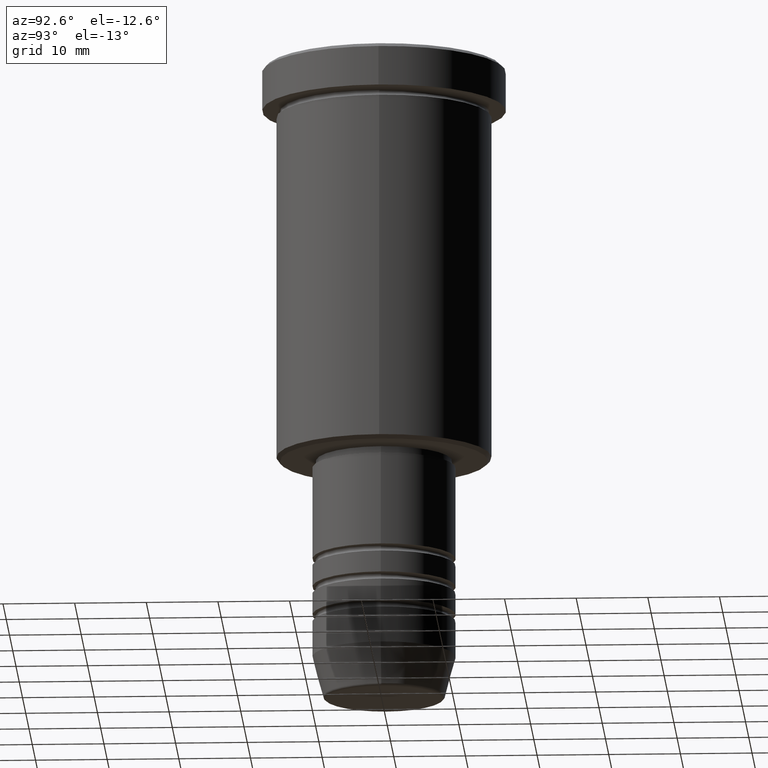
[diagram: clean part render]
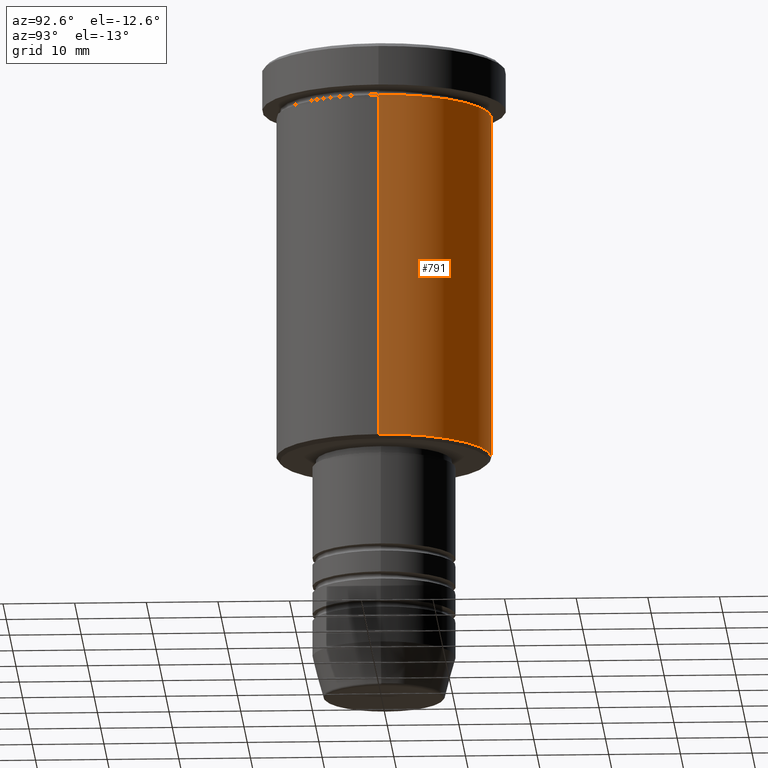
[diagram: same view with one face highlighted and labeled with its STEP entity id]
A machine part, auxiliary view. The second image highlights one B-rep face of the part: STEP entity #791.
In plain terms, the highlighted cylindrical surface (partial cylindrical patch) has radius 15 mm, axis along (-0, -0, 1).
Its self-contained STEP definition (entity closure, byte-faithful):
#25 = AXIS2_PLACEMENT_3D ( 'NONE', #471, #1076, #739 ) ;
#42 = DIRECTION ( 'NONE',  ( -0.000000000000000000, -0.000000000000000000, 1.000000000000000000 ) ) ;
#76 = ORIENTED_EDGE ( 'NONE', *, *, #915, .T. ) ;
#147 = DIRECTION ( 'NONE',  ( -0.000000000000000000, -0.000000000000000000, 1.000000000000000000 ) ) ;
#179 = DIRECTION ( 'NONE',  ( -0.000000000000000000, -0.000000000000000000, 1.000000000000000000 ) ) ;
#180 = EDGE_CURVE ( 'NONE', #697, #325, #645, .T. ) ;
#250 = EDGE_CURVE ( 'NONE', #1119, #457, #881, .T. ) ;
#276 = ORIENTED_EDGE ( 'NONE', *, *, #180, .F. ) ;
#323 = CIRCLE ( 'NONE', #25, 15.00000000000000000 ) ;
#325 = VERTEX_POINT ( 'NONE', #1155 ) ;
#326 = DIRECTION ( 'NONE',  ( 1.000000000000000000, 0.000000000000000000, 0.000000000000000000 ) ) ;
#327 = CARTESIAN_POINT ( 'NONE',  ( -15.00000000000000000, 1.836970198721029589E-15, 0.000000000000000000 ) ) ;
#421 = CIRCLE ( 'NONE', #502, 15.00000000000000000 ) ;
#434 = ORIENTED_EDGE ( 'NONE', *, *, #250, .T. ) ;
#447 = CARTESIAN_POINT ( 'NONE',  ( 15.00000000000000000, 0.000000000000000000, 0.000000000000000000 ) ) ;
#457 = VERTEX_POINT ( 'NONE', #835 ) ;
#471 = CARTESIAN_POINT ( 'NONE',  ( 0.000000000000000000, 0.000000000000000000, -55.49999999999997158 ) ) ;
#480 = DIRECTION ( 'NONE',  ( 1.000000000000000000, 0.000000000000000000, 0.000000000000000000 ) ) ;
#502 = AXIS2_PLACEMENT_3D ( 'NONE', #1013, #927, #480 ) ;
#593 = FACE_OUTER_BOUND ( 'NONE', #669, .T. ) ;
#638 = AXIS2_PLACEMENT_3D ( 'NONE', #944, #147, #326 ) ;
#645 = LINE ( 'NONE', #447, #750 ) ;
#669 = EDGE_LOOP ( 'NONE', ( #76, #434, #1178, #276 ) ) ;
#697 = VERTEX_POINT ( 'NONE', #875 ) ;
#739 = DIRECTION ( 'NONE',  ( -1.000000000000000000, 0.000000000000000000, 0.000000000000000000 ) ) ;
#750 = VECTOR ( 'NONE', #179, 1000.000000000000000 ) ;
#791 = ADVANCED_FACE ( 'NONE', ( #593 ), #1135, .T. ) ;
#792 = CARTESIAN_POINT ( 'NONE',  ( -15.00000000000000000, 1.836970198721029589E-15, -55.49999999999997158 ) ) ;
#835 = CARTESIAN_POINT ( 'NONE',  ( -15.00000000000000000, 1.836970198721029589E-15, -6.999999999999995559 ) ) ;
#875 = CARTESIAN_POINT ( 'NONE',  ( 15.00000000000000000, 0.000000000000000000, -55.49999999999997158 ) ) ;
#881 = LINE ( 'NONE', #327, #925 ) ;
#915 = EDGE_CURVE ( 'NONE', #697, #1119, #323, .T. ) ;
#925 = VECTOR ( 'NONE', #42, 1000.000000000000000 ) ;
#927 = DIRECTION ( 'NONE',  ( -0.000000000000000000, -0.000000000000000000, 1.000000000000000000 ) ) ;
#944 = CARTESIAN_POINT ( 'NONE',  ( 0.000000000000000000, 0.000000000000000000, 0.000000000000000000 ) ) ;
#1013 = CARTESIAN_POINT ( 'NONE',  ( 0.000000000000000000, 0.000000000000000000, -6.999999999999995559 ) ) ;
#1052 = EDGE_CURVE ( 'NONE', #325, #457, #421, .T. ) ;
#1076 = DIRECTION ( 'NONE',  ( -0.000000000000000000, -0.000000000000000000, 1.000000000000000000 ) ) ;
#1119 = VERTEX_POINT ( 'NONE', #792 ) ;
#1135 = CYLINDRICAL_SURFACE ( 'NONE', #638, 15.00000000000000000 ) ;
#1155 = CARTESIAN_POINT ( 'NONE',  ( 15.00000000000000000, 0.000000000000000000, -6.999999999999995559 ) ) ;
#1178 = ORIENTED_EDGE ( 'NONE', *, *, #1052, .F. ) ;